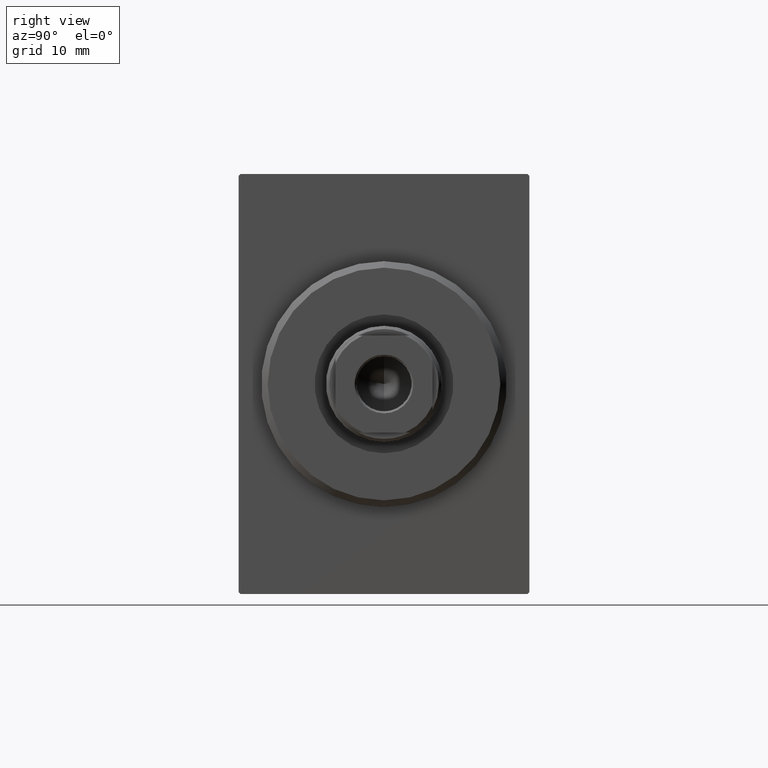
[diagram: clean part render]
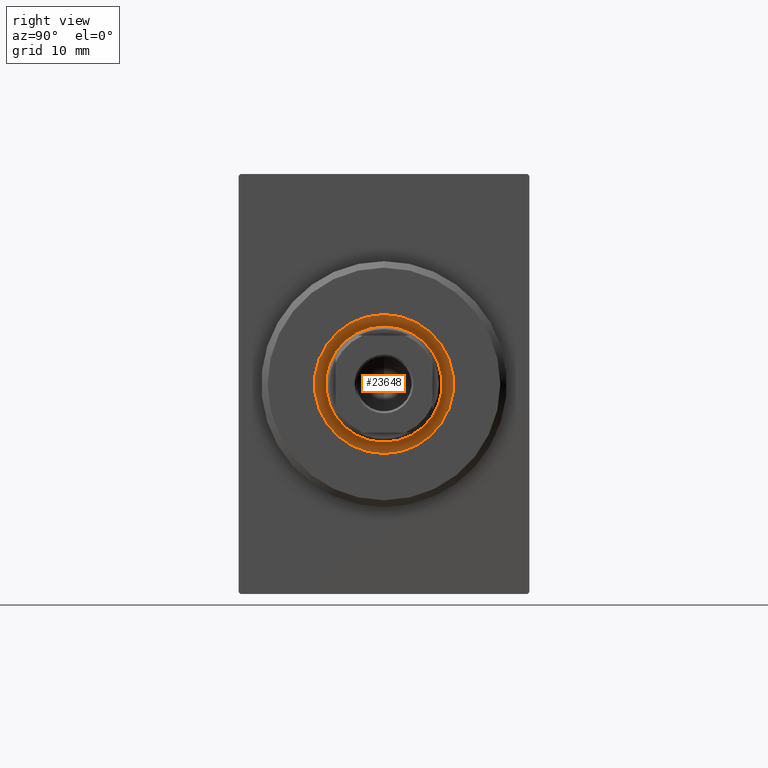
[diagram: same view with one face highlighted and labeled with its STEP entity id]
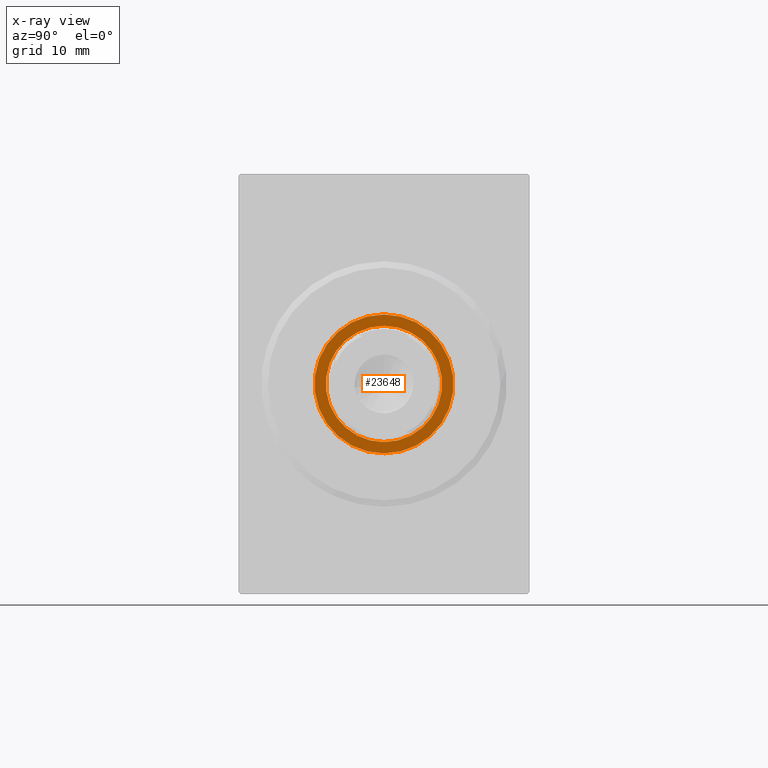
[diagram: x-ray of the same camera — body ghosted, the highlighted face saturated]
A machine part, right view. The second image highlights one B-rep face of the part: STEP entity #23648.
The next image is the same camera in x-ray: the body ghosted, the highlighted face saturated — about 0% of this face is hidden behind the body in this view.
In plain terms, the highlighted planar face has unit normal (1, 0, 0).
Its self-contained STEP definition (entity closure, byte-faithful):
#60 = AXIS2_PLACEMENT_3D ( 'NONE', #37161, #7653, #8712 ) ;
#1432 = EDGE_CURVE ( 'NONE', #20882, #6609, #16047, .T. ) ;
#2960 = CARTESIAN_POINT ( 'NONE',  ( 1.500000000000000000, 1.316495309083404223E-15, -10.75000000000000000 ) ) ;
#4509 = CIRCLE ( 'NONE', #31346, 9.000000000000000000 ) ;
#4518 = CARTESIAN_POINT ( 'NONE',  ( 1.499999999999999556, 0.000000000000000000, 0.000000000000000000 ) ) ;
#4550 = ORIENTED_EDGE ( 'NONE', *, *, #7160, .F. ) ;
#6173 = EDGE_LOOP ( 'NONE', ( #4550, #16010 ) ) ;
#6609 = VERTEX_POINT ( 'NONE', #16597 ) ;
#7160 = EDGE_CURVE ( 'NONE', #23067, #16413, #4509, .T. ) ;
#7653 = DIRECTION ( 'NONE',  ( 1.000000000000000000, 0.000000000000000000, 0.000000000000000000 ) ) ;
#8712 = DIRECTION ( 'NONE',  ( 0.000000000000000000, 0.000000000000000000, -1.000000000000000000 ) ) ;
#8878 = ORIENTED_EDGE ( 'NONE', *, *, #23881, .T. ) ;
#9982 = CARTESIAN_POINT ( 'NONE',  ( 1.499999999999999556, 0.000000000000000000, 0.000000000000000000 ) ) ;
#10195 = DIRECTION ( 'NONE',  ( 0.000000000000000000, 0.000000000000000000, -1.000000000000000000 ) ) ;
#11289 = CARTESIAN_POINT ( 'NONE',  ( 1.499999999999999556, 0.000000000000000000, -9.000000000000000000 ) ) ;
#11703 = AXIS2_PLACEMENT_3D ( 'NONE', #28364, #26200, #29416 ) ;
#13424 = DIRECTION ( 'NONE',  ( 1.000000000000000000, 0.000000000000000000, 0.000000000000000000 ) ) ;
#13777 = DIRECTION ( 'NONE',  ( 1.000000000000000000, 0.000000000000000000, 0.000000000000000000 ) ) ;
#16010 = ORIENTED_EDGE ( 'NONE', *, *, #41404, .F. ) ;
#16047 = CIRCLE ( 'NONE', #29138, 10.75000000000000000 ) ;
#16413 = VERTEX_POINT ( 'NONE', #19557 ) ;
#16597 = CARTESIAN_POINT ( 'NONE',  ( 1.500000000000000000, 0.000000000000000000, 10.75000000000000000 ) ) ;
#18459 = FACE_BOUND ( 'NONE', #6173, .T. ) ;
#19557 = CARTESIAN_POINT ( 'NONE',  ( 1.499999999999999556, 1.102182119232617714E-15, 9.000000000000000000 ) ) ;
#20882 = VERTEX_POINT ( 'NONE', #2960 ) ;
#23067 = VERTEX_POINT ( 'NONE', #11289 ) ;
#23648 = ADVANCED_FACE ( 'NONE', ( #18459, #41301 ), #31590, .T. ) ;
#23881 = EDGE_CURVE ( 'NONE', #6609, #20882, #27537, .T. ) ;
#25112 = AXIS2_PLACEMENT_3D ( 'NONE', #4518, #13777, #40288 ) ;
#26200 = DIRECTION ( 'NONE',  ( 1.000000000000000000, 0.000000000000000000, 0.000000000000000000 ) ) ;
#26260 = ORIENTED_EDGE ( 'NONE', *, *, #1432, .T. ) ;
#27537 = CIRCLE ( 'NONE', #60, 10.75000000000000000 ) ;
#28364 = CARTESIAN_POINT ( 'NONE',  ( 1.500000000000000000, 0.000000000000000000, 0.000000000000000000 ) ) ;
#28702 = DIRECTION ( 'NONE',  ( 0.000000000000000000, 0.000000000000000000, -1.000000000000000000 ) ) ;
#29138 = AXIS2_PLACEMENT_3D ( 'NONE', #29338, #39255, #28702 ) ;
#29338 = CARTESIAN_POINT ( 'NONE',  ( 1.500000000000000000, 0.000000000000000000, 0.000000000000000000 ) ) ;
#29416 = DIRECTION ( 'NONE',  ( 0.000000000000000000, 0.000000000000000000, -1.000000000000000000 ) ) ;
#31346 = AXIS2_PLACEMENT_3D ( 'NONE', #9982, #13424, #10195 ) ;
#31590 = PLANE ( 'NONE',  #11703 ) ;
#37161 = CARTESIAN_POINT ( 'NONE',  ( 1.500000000000000000, 0.000000000000000000, 0.000000000000000000 ) ) ;
#37415 = EDGE_LOOP ( 'NONE', ( #8878, #26260 ) ) ;
#39255 = DIRECTION ( 'NONE',  ( 1.000000000000000000, 0.000000000000000000, 0.000000000000000000 ) ) ;
#40288 = DIRECTION ( 'NONE',  ( 0.000000000000000000, 0.000000000000000000, -1.000000000000000000 ) ) ;
#41301 = FACE_OUTER_BOUND ( 'NONE', #37415, .T. ) ;
#41404 = EDGE_CURVE ( 'NONE', #16413, #23067, #42306, .T. ) ;
#42306 = CIRCLE ( 'NONE', #25112, 9.000000000000000000 ) ;